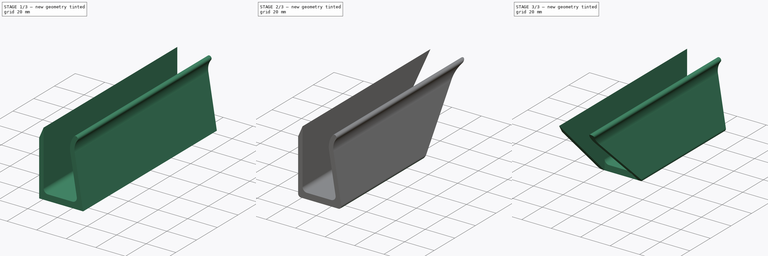
[diagram: build sequence overview — one tinted view per stage of 3, left to right]
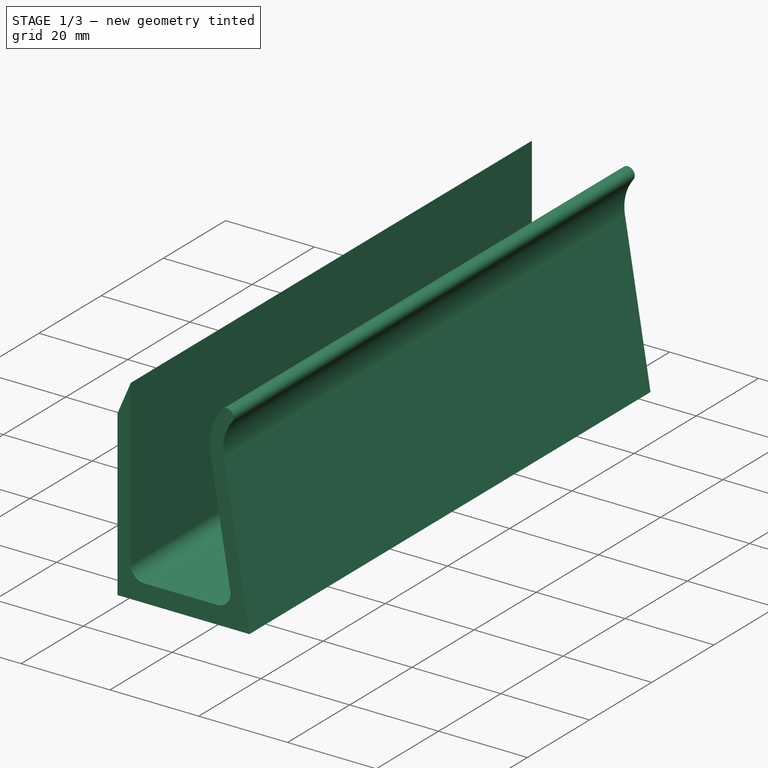
[diagram: stage 1 of 3 — iso view after this stage's code; geometry added in this stage tinted green]
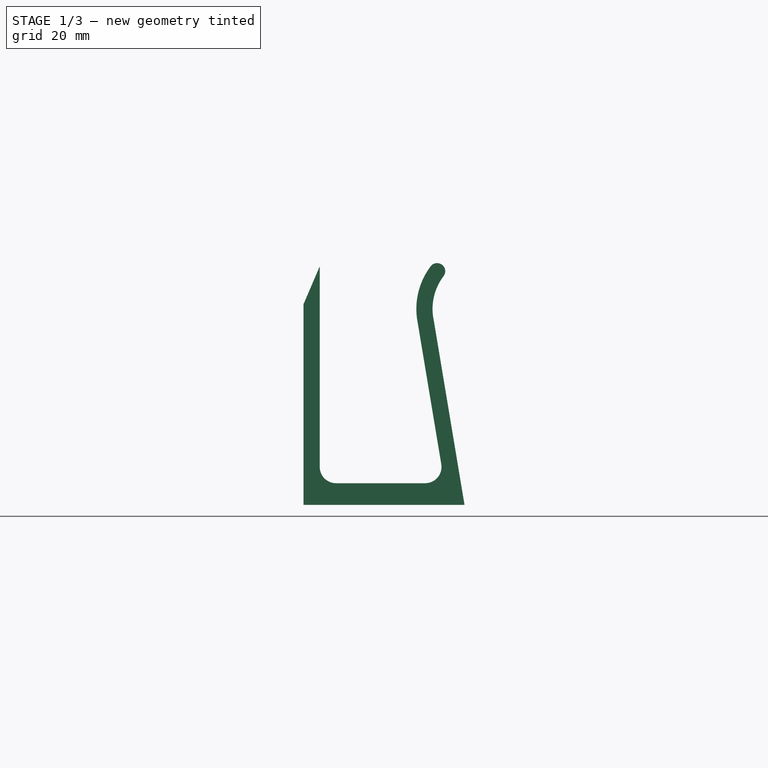
[diagram: stage 1 of 3 — front view after this stage's code; geometry added in this stage tinted green]
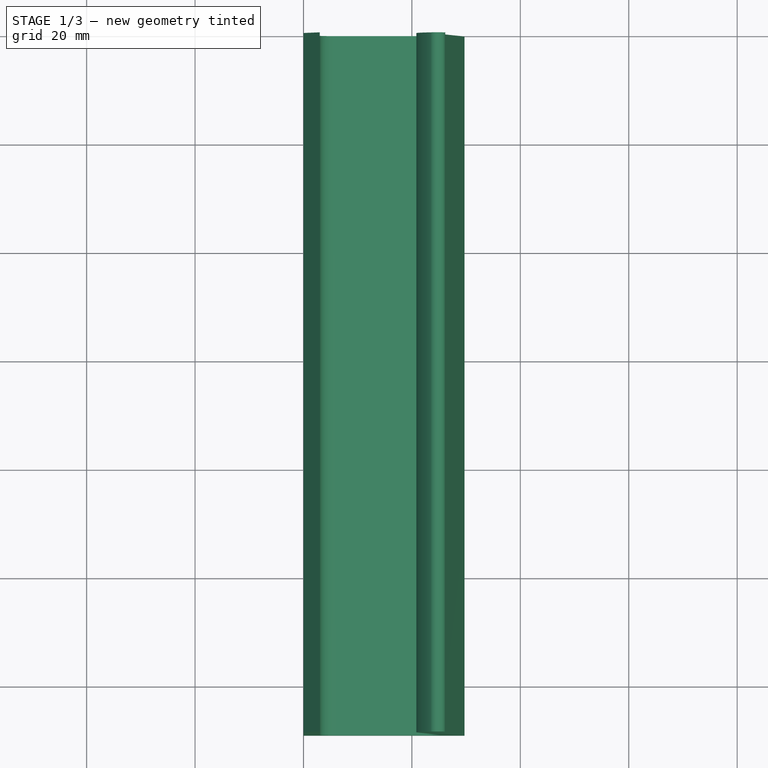
[diagram: stage 1 of 3 — top view after this stage's code; geometry added in this stage tinted green]
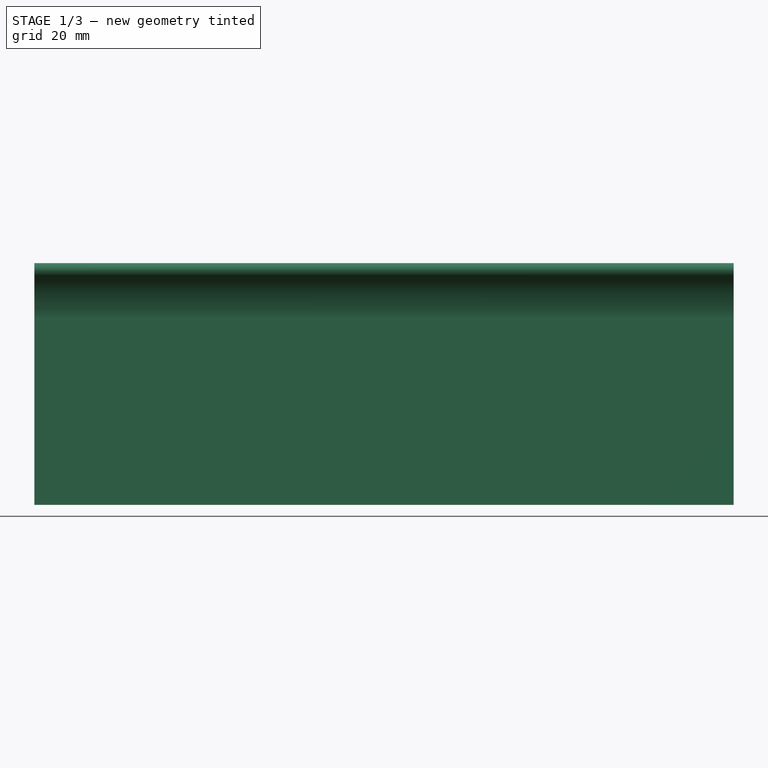
[diagram: stage 1 of 3 — right view after this stage's code; geometry added in this stage tinted green]
FCSTD DOCUMENT  (FreeCAD 1.0R39109 (Git))
Label: Staufachrahmen_Ecke01
License: All rights reserved
LicenseURL: http://en.wikipedia.org/wiki/All_rights_reserved
objects: Sketcher::SketchObject×3, PartDesign::Fillet×2, PartDesign::Pocket×2, PartDesign::Pad×1, PartDesign::Body×1, Part::Mirroring×1
note: 23 computed .brp shape members not serialized (recipe doc carries the construction recipe); baked Part::Feature solids carry a one-line shape summary decoded from their .brp

FEATURE [Sketcher::SketchObject] Sketch
  ArcFitTolerance = 1e-06
  AttachmentSupport = -> [XZ_Plane]
  FullyConstrained = true
  MakeInternals = false
  MapMode = 5
  Placement = pos=(0,0,0) rot=(1,0,0;1.5708rad)
  sketch-geometry (10):
    g0: LineSegment StartX=0 StartY=0 StartZ=0 EndX=0 EndY=37 EndZ=0
    g1: LineSegment StartX=3 StartY=44 StartZ=0 EndX=3 EndY=4 EndZ=0
    g2: LineSegment StartX=3 StartY=4 StartZ=0 EndX=26 EndY=4 EndZ=0
    g3: LineSegment StartX=26 StartY=4 StartZ=0 EndX=21 EndY=34 EndZ=0
    g4: ArcOfCircle CenterX=33.8777 CenterY=36.1463 CenterZ=0 NormalX=0 NormalY=0 NormalZ=1 AngleXU=0 Radius=13.0553 StartAngle=2.49613 EndAngle=3.30674
    g5: ArcOfCircle CenterX=24.6471 CenterY=43.0976 CenterZ=0 NormalX=0 NormalY=0 NormalZ=1 AngleXU=0 Radius=1.5 StartAngle=5.63409 EndAngle=8.77931
    g6: ArcOfCircle CenterX=33.8083 CenterY=36.1463 CenterZ=0 NormalX=0 NormalY=0 NormalZ=1 AngleXU=0 Radius=10 StartAngle=2.4925 EndAngle=3.3579
    g7: LineSegment StartX=24.0414 StartY=34 StartZ=0 EndX=29.708 EndY=1e-15 EndZ=0
    g8: LineSegment StartX=29.708 StartY=-6e-16 StartZ=0 EndX=0 EndY=0 EndZ=0
    g9: LineSegment StartX=0 StartY=37 StartZ=0 EndX=3 EndY=44 EndZ=0
  constraints (29):
    c: Coincident(g-1,g0)
    c: PointOnObject(g0,g-2)
    c: Vertical(g1)
    c: Coincident(g1,g2)
    c: Horizontal(g2)
    c: Coincident(g2,g3)
    c: Tangent(g3,g4) = 1.5708
    c: Tangent(g4,g5) = -1.5708
    c: Tangent(g5,g6) = 1.5708
    c: Coincident(g6,g7)
    c: PointOnObject(g7,g-1)
    c: Coincident(g7,g8)
    c: Coincident(g8,g0)
    c: Distance(g1,g0) = 3
    c: Distance(g1,g8) = 4
    c: Parallel(g3,g7)
    c: Distance(g2,g7) = 3
    c: Radius(g5) = 1.5
    c: Coincident(g9,g0)
    c: Coincident(g9,g1)
    c: DistanceY(g0,g0) = 37
    c: DistanceY(g1,g1) = 40
    c: DistanceX(g2,g2) = 23
    c: Distance(g3,g1) = 18
    c: Distance(g4,g2) = 40
    c: Horizontal(g3,g6)
    c: Distance(g6,g2) = 30
    c: Horizontal(g4,g6)
    c: Radius(g6) = 10
FEATURE [PartDesign::Pad] Pad
  Direction = (0,-1,2e-16)
  Length = 129
  Length2 = 10
  Placement = pos=(0,0,0) rot=(1,0,0;1.5708rad)
  Profile = -> Sketch
  ReferenceAxis = -> Sketch [N_Axis]
  Suppressed = false
  Type = 0
FEATURE [PartDesign::Fillet] Fillet
  Base = -> Pad [Edge20,Edge17]
  BaseFeature = -> Pad
  Placement = pos=(0,0,0) rot=(1,0,0;1.5708rad)
  Radius = 3
  SupportTransform = false
  Suppressed = false
  UseAllEdges = false
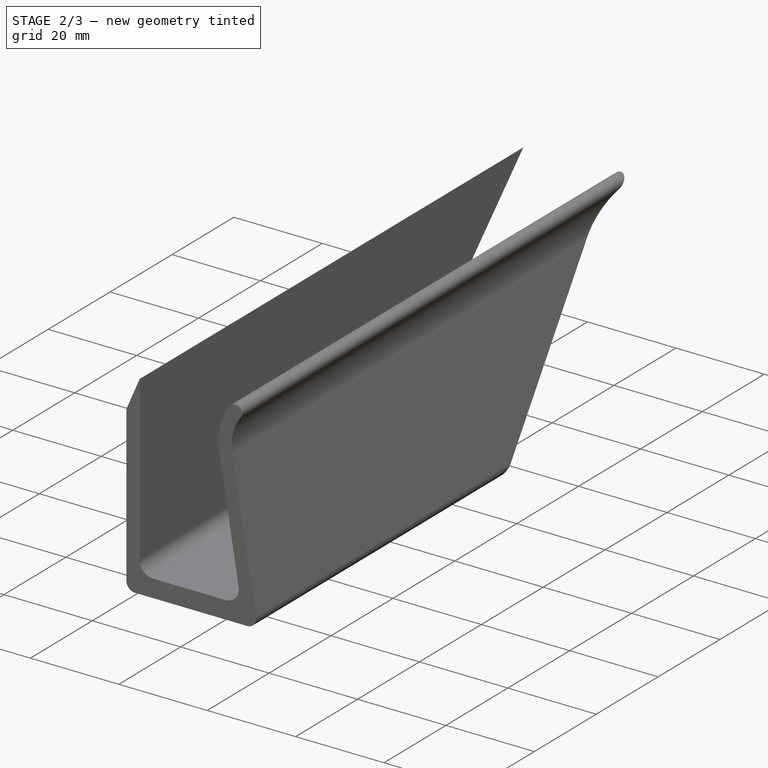
[diagram: stage 2 of 3 — iso view after this stage's code; geometry added in this stage tinted green]
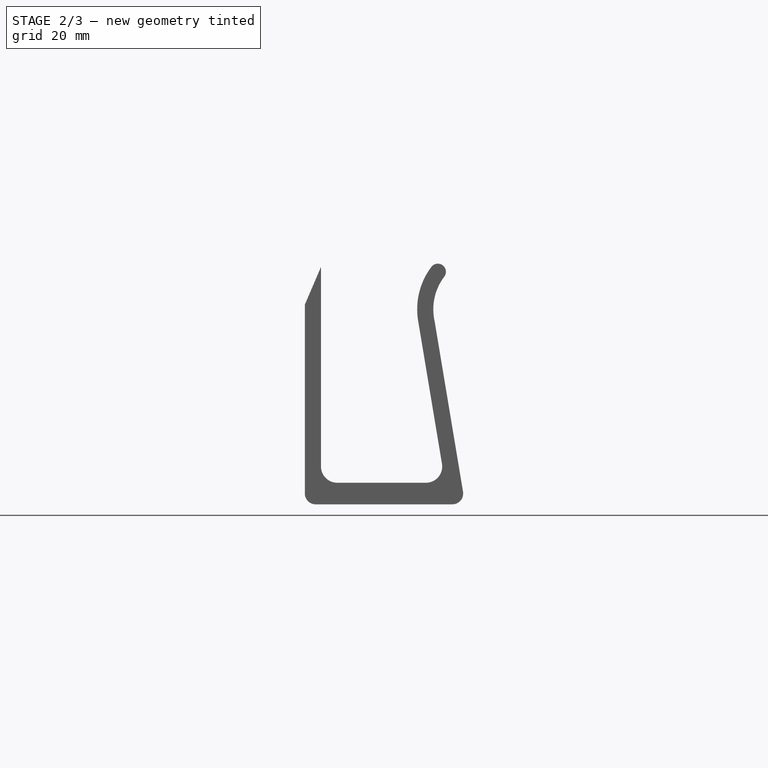
[diagram: stage 2 of 3 — front view after this stage's code; geometry added in this stage tinted green]
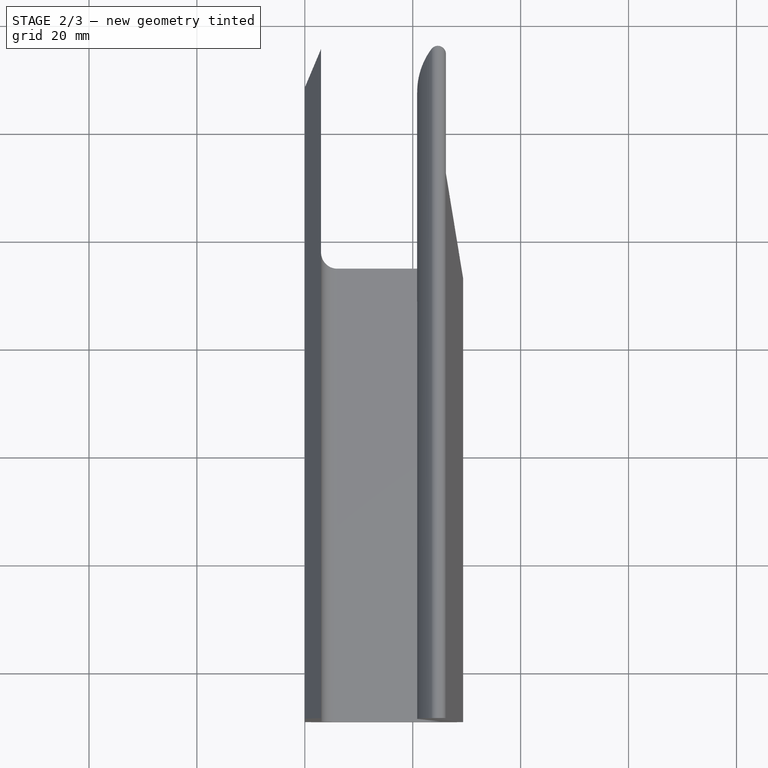
[diagram: stage 2 of 3 — top view after this stage's code; geometry added in this stage tinted green]
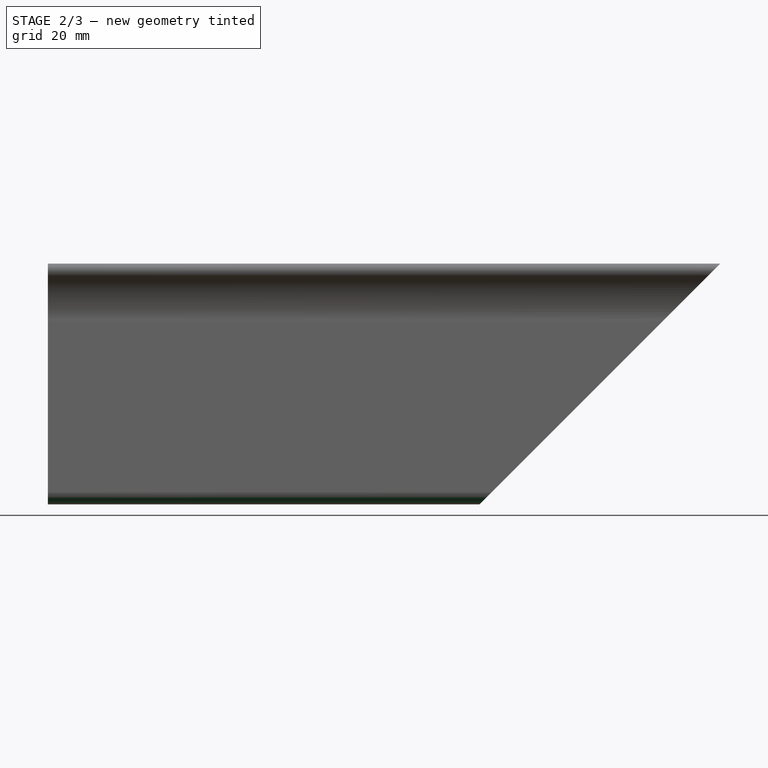
[diagram: stage 2 of 3 — right view after this stage's code; geometry added in this stage tinted green]
FEATURE [PartDesign::Fillet] Fillet001
  Base = -> Fillet [Edge30,Edge32]
  BaseFeature = -> Fillet
  Placement = pos=(0,0,0) rot=(1,0,0;1.5708rad)
  Radius = 2
  SupportTransform = false
  Suppressed = false
  UseAllEdges = false
FEATURE [Sketcher::SketchObject] Sketch001
  ArcFitTolerance = 1e-06
  AttachmentSupport = -> [Fillet001]
  FullyConstrained = true
  MakeInternals = false
  MapMode = 5
  Placement = pos=(0,0,0) rot=(0.707107,0,-0.707107;3.14159rad)
  sketch-geometry (4):
    g0: LineSegment StartX=0 StartY=49 StartZ=0 EndX=-45 EndY=4 EndZ=0
    g1: LineSegment StartX=0 StartY=0 StartZ=0 EndX=0 EndY=49 EndZ=0
    g2: LineSegment StartX=-45 StartY=4 StartZ=0 EndX=-45 EndY=0 EndZ=0
    g3: LineSegment StartX=-45 StartY=0 StartZ=0 EndX=0 EndY=0 EndZ=0
  constraints (11):
    c: PointOnObject(g0,g-2)
    c: DistanceX(g0,g-1) = 45
    c: DistanceY(g-1,g0) = 49
    c: Coincident(g1,g0)
    c: Coincident(g0,g2)
    c: PointOnObject(g2,g-1)
    c: Vertical(g2)
    c: Coincident(g2,g3)
    c: Coincident(g3,g-1)
    c: Coincident(g1,g3)
    c: Distance(g0,g-1) = 4
FEATURE [PartDesign::Pocket] Pocket
  BaseFeature = -> Fillet001
  Direction = (1,0,2e-16)
  Length = 5
  Length2 = 5
  Placement = pos=(0,0,0) rot=(1,0,0;1.5708rad)
  Profile = -> Sketch001
  ReferenceAxis = -> Sketch001 [N_Axis]
  Suppressed = false
  Type = 1
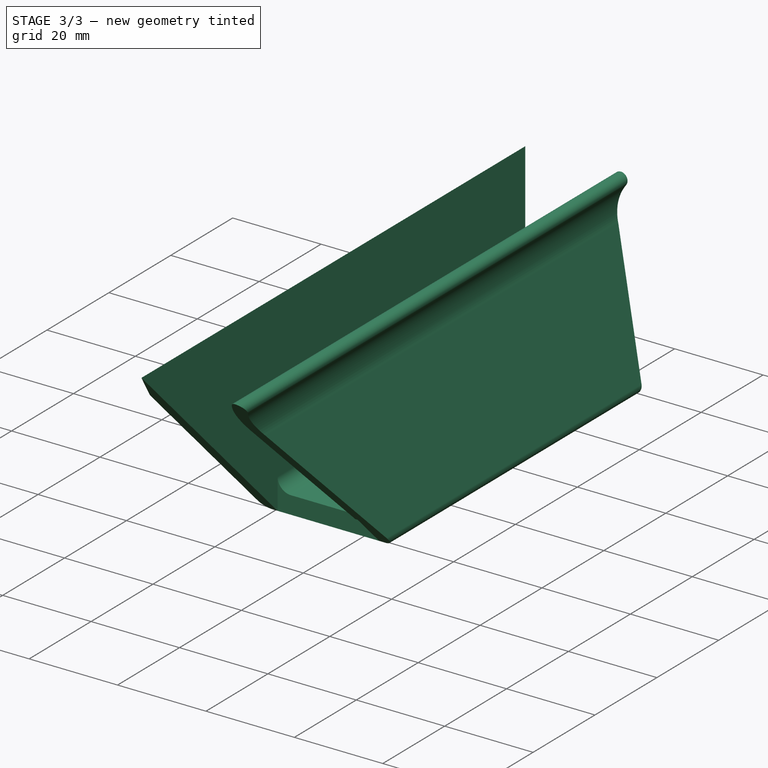
[diagram: stage 3 of 3 — iso view after this stage's code; geometry added in this stage tinted green]
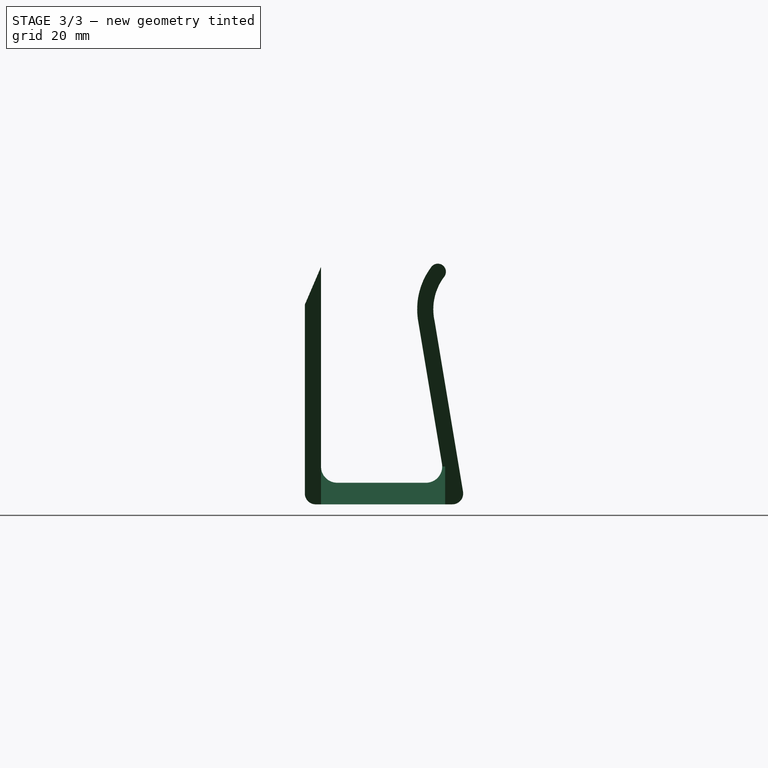
[diagram: stage 3 of 3 — front view after this stage's code; geometry added in this stage tinted green]
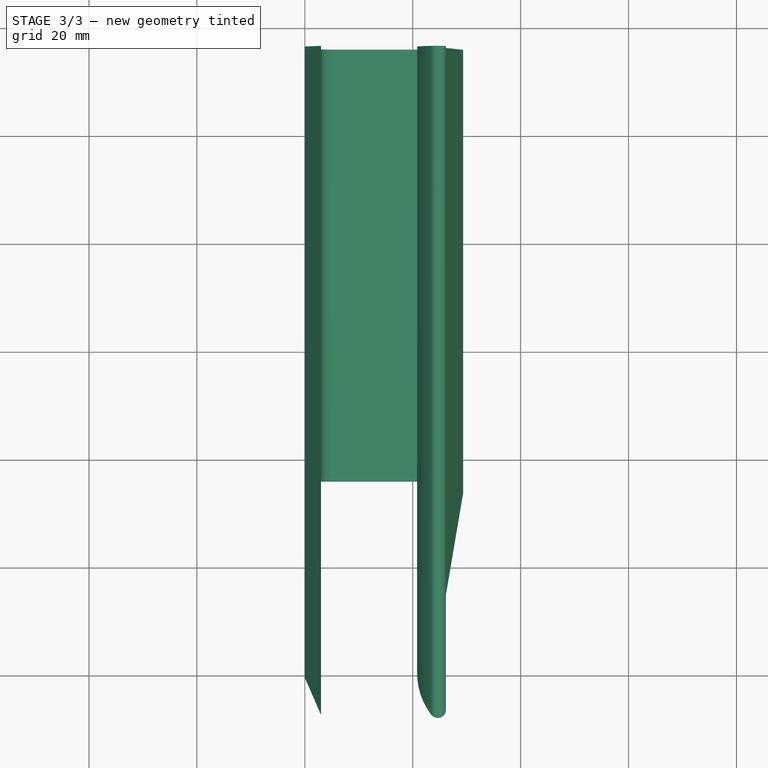
[diagram: stage 3 of 3 — top view after this stage's code; geometry added in this stage tinted green]
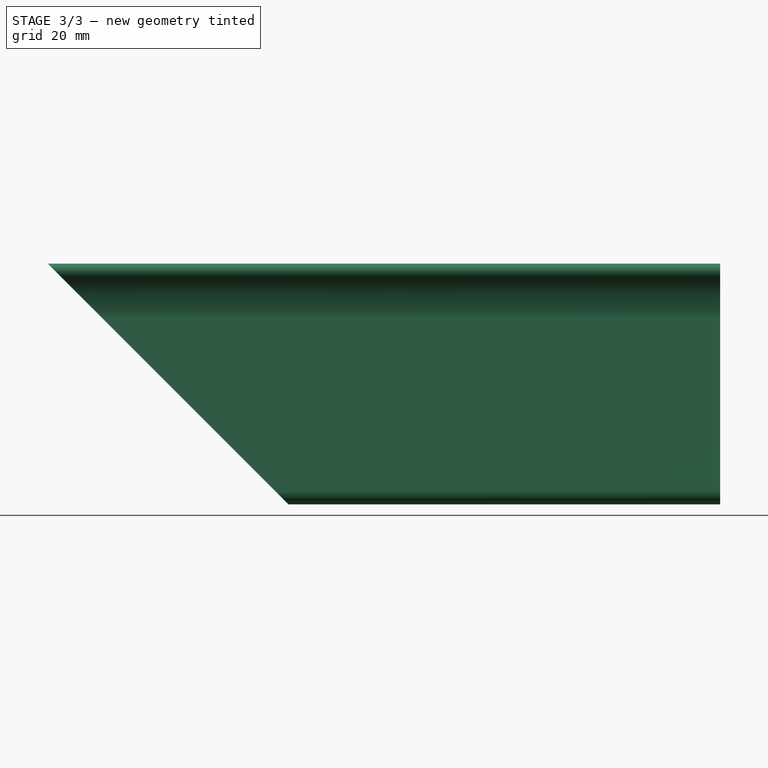
[diagram: stage 3 of 3 — right view after this stage's code; geometry added in this stage tinted green]
FEATURE [Sketcher::SketchObject] Sketch002
  ArcFitTolerance = 1e-06
  AttachmentSupport = -> [XZ_Plane]
  FullyConstrained = true
  MakeInternals = false
  MapMode = 5
  Placement = pos=(0,0,0) rot=(1,0,0;1.5708rad)
  sketch-geometry (4):
    g0: LineSegment StartX=3 StartY=0 StartZ=0 EndX=26 EndY=0 EndZ=0
    g1: LineSegment StartX=26 StartY=0 StartZ=0 EndX=26 EndY=7 EndZ=0
    g2: LineSegment StartX=26 StartY=7 StartZ=0 EndX=3 EndY=7 EndZ=0
    g3: LineSegment StartX=3 StartY=7 StartZ=0 EndX=3 EndY=0 EndZ=0
  constraints (12):
    c: Coincident(g0,g1)
    c: Coincident(g1,g2)
    c: Coincident(g2,g3)
    c: Coincident(g3,g0)
    c: Horizontal(g0)
    c: Horizontal(g2)
    c: Vertical(g1)
    c: Vertical(g3)
    c: PointOnObject(g0,g-1)
    c: Distance(g-2,g3) = 3
    c: DistanceX(g0,g0) = 23
    c: DistanceY(g1,g1) = 7
FEATURE [PartDesign::Pocket] Pocket001
  BaseFeature = -> Pocket
  Direction = (0,1,-2e-16)
  Length = 49
  Length2 = 5
  Placement = pos=(0,0,0) rot=(1,0,0;1.5708rad)
  Profile = -> Sketch002
  ReferenceAxis = -> Sketch002 [N_Axis]
  Reversed = true
  Suppressed = false
  Type = 0
FEATURE [PartDesign::Body] Body  label="Körper"
  AllowCompound = false
  Group = -> [Sketch,Pad,Fillet,Fillet001,Sketch001,Pocket,Sketch002,Pocket001]
  Origin = -> Origin
  Tip = -> Pocket001
FEATURE [Part::Mirroring] Part__Mirroring  label="Körper (Mirror #1)"
  Base = (0,-129,2)
  MirrorPlane = -> Pocket [Face4]
  Normal = (0,1,-2e-16)
  Placement = pos=(0,-35,0) rot=(0,0,1;0rad)
  Source = -> Body
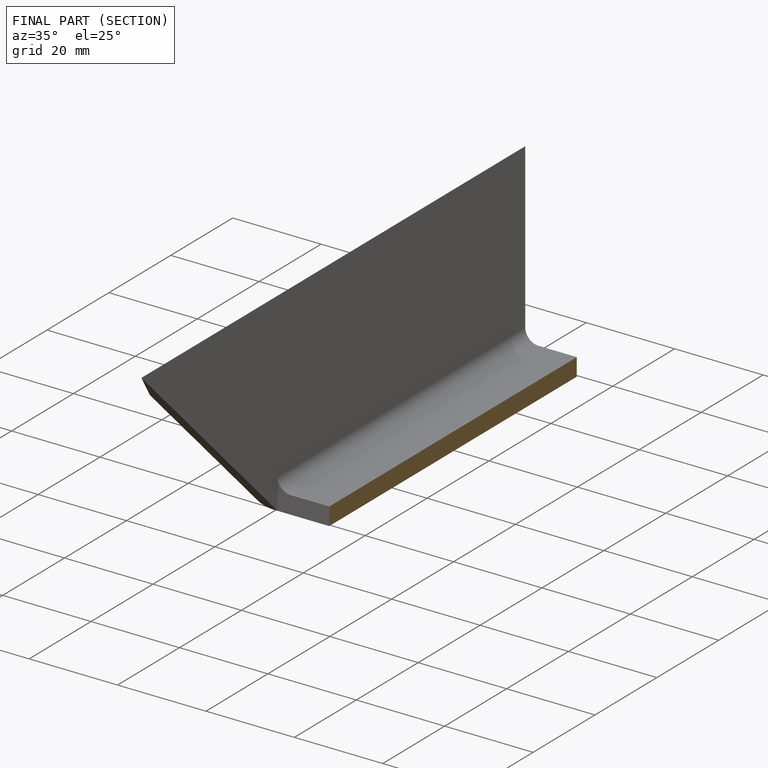
[diagram: finished part — half-section view (interior)]
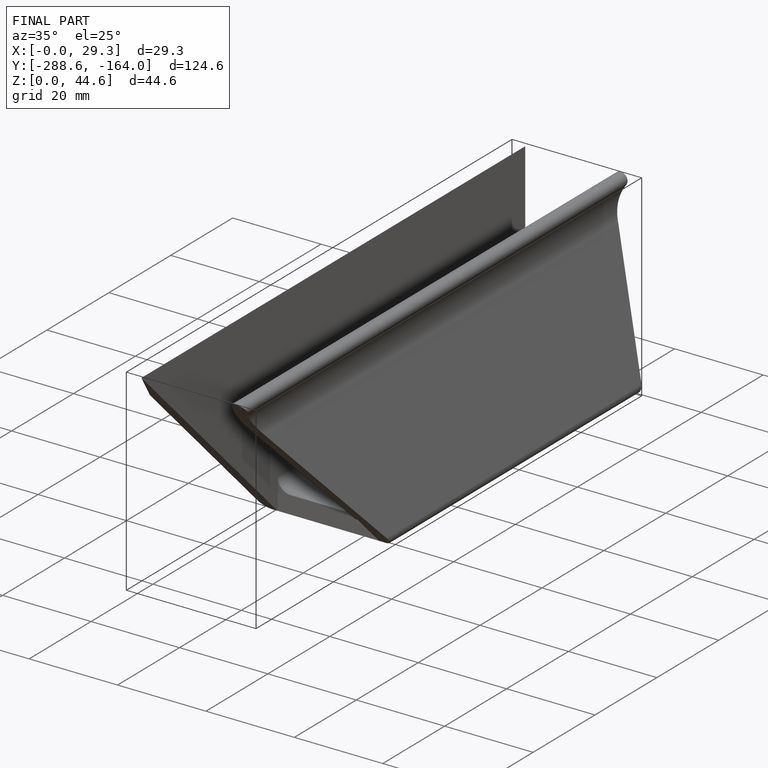
[diagram: finished part — iso view with bounding-box wireframe]
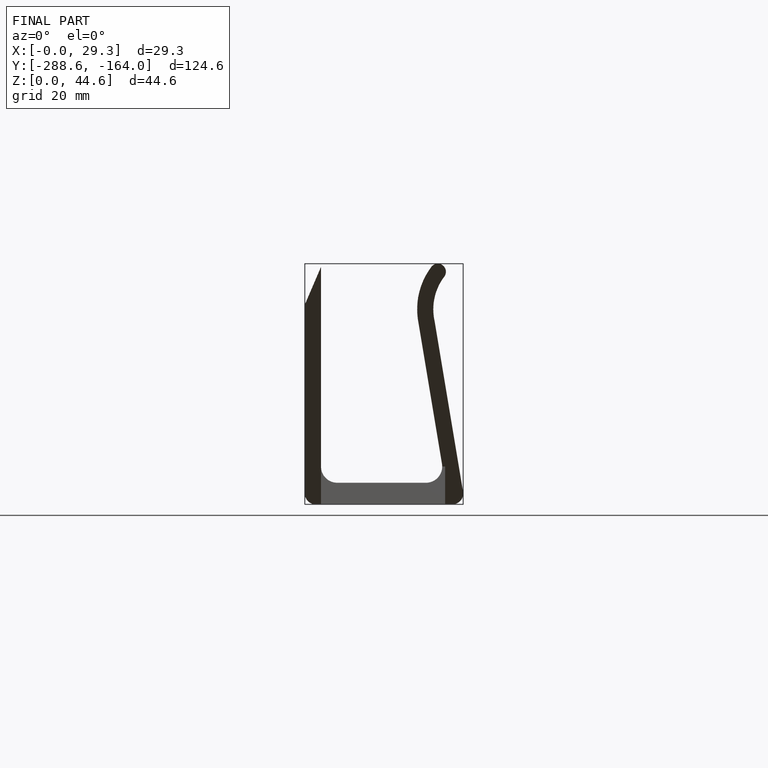
[diagram: finished part — front view with bounding-box wireframe]
